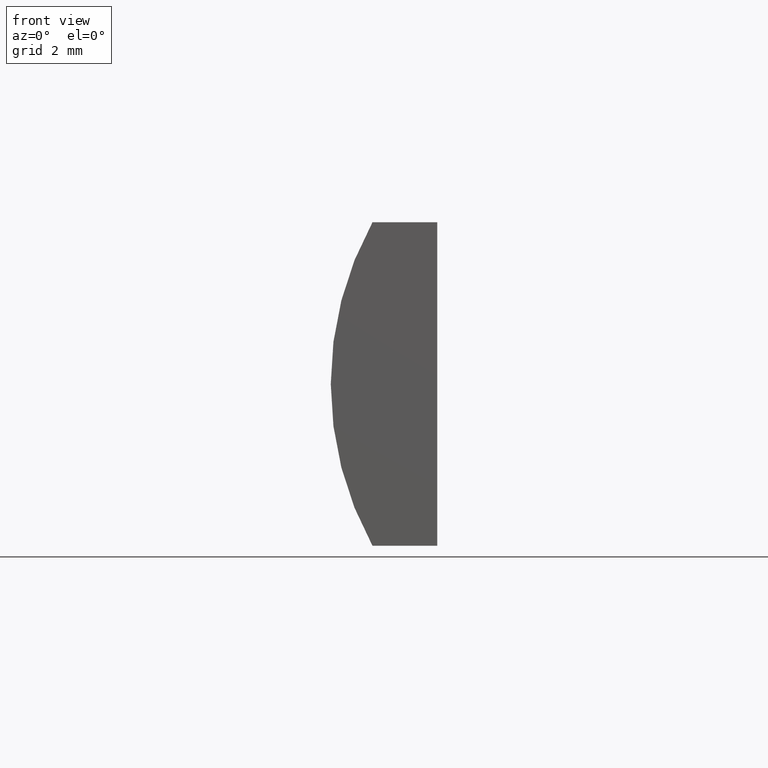
[diagram: clean part render]
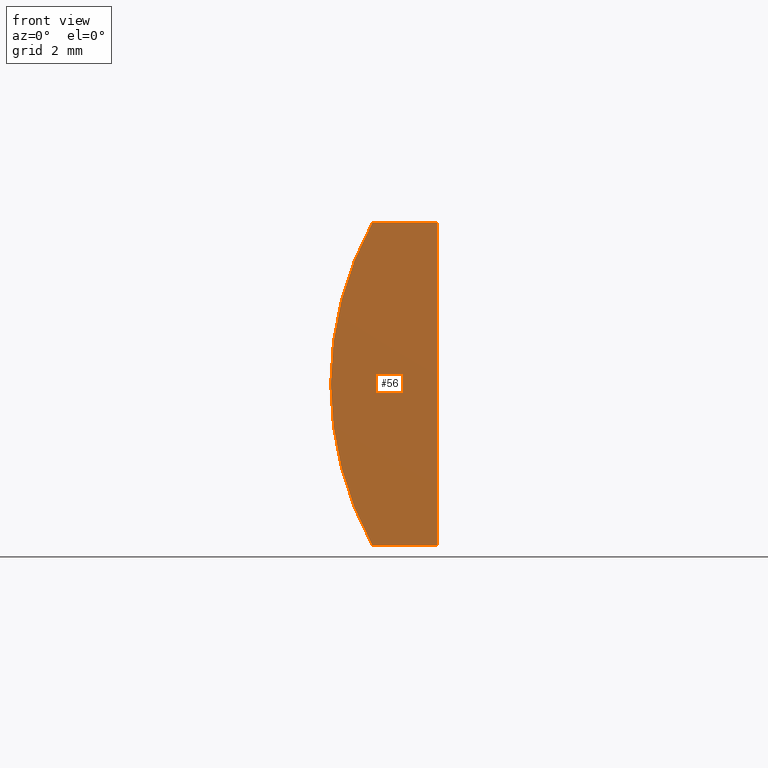
[diagram: same view with one face highlighted and labeled with its STEP entity id]
A machine part, front view. The second image highlights one B-rep face of the part: STEP entity #56.
In plain terms, the highlighted planar face has unit normal (0, 1, 0).
Its self-contained STEP definition (entity closure, byte-faithful):
#5 = LINE ( 'NONE', #129, #48 ) ;
#8 = VERTEX_POINT ( 'NONE', #71 ) ;
#11 = ORIENTED_EDGE ( 'NONE', *, *, #159, .F. ) ;
#13 = CARTESIAN_POINT ( 'NONE',  ( 4.355204334851265500, 0.0000000000000000000, 4.286263797015675000E-017 ) ) ;
#16 = CARTESIAN_POINT ( 'NONE',  ( 4.355204334851265500, 0.0000000000000000000, 4.286263797015675000E-017 ) ) ;
#20 = CARTESIAN_POINT ( 'NONE',  ( -4.695519393116569500, 0.0000000000000000000, -5.000000000000000000 ) ) ;
#38 = AXIS2_PLACEMENT_3D ( 'NONE', #13, #83, #178 ) ;
#48 = VECTOR ( 'NONE', #162, 1000.000000000000000 ) ;
#53 = CARTESIAN_POINT ( 'NONE',  ( -2.694795665148737900, 0.0000000000000000000, -5.000000000000000000 ) ) ;
#55 = CIRCLE ( 'NONE', #38, 10.34000000000000000 ) ;
#56 = ADVANCED_FACE ( 'NONE', ( #151 ), #81, .F. ) ;
#66 = DIRECTION ( 'NONE',  ( 1.000000000000000000, 0.0000000000000000000, 0.0000000000000000000 ) ) ;
#68 = ORIENTED_EDGE ( 'NONE', *, *, #115, .F. ) ;
#70 = DIRECTION ( 'NONE',  ( 0.0000000000000000000, 1.000000000000000000, 0.0000000000000000000 ) ) ;
#71 = CARTESIAN_POINT ( 'NONE',  ( -4.695519393116569500, 0.0000000000000000000, 5.000000000000000000 ) ) ;
#81 = PLANE ( 'NONE',  #182 ) ;
#83 = DIRECTION ( 'NONE',  ( 0.0000000000000000000, 1.000000000000000000, 0.0000000000000000000 ) ) ;
#97 = EDGE_CURVE ( 'NONE', #8, #121, #117, .T. ) ;
#100 = VECTOR ( 'NONE', #66, 1000.000000000000000 ) ;
#106 = VERTEX_POINT ( 'NONE', #20 ) ;
#108 = CARTESIAN_POINT ( 'NONE',  ( -2.694795665148734400, 0.0000000000000000000, 5.000000000000000000 ) ) ;
#115 = EDGE_CURVE ( 'NONE', #106, #8, #55, .T. ) ;
#117 = LINE ( 'NONE', #119, #100 ) ;
#119 = CARTESIAN_POINT ( 'NONE',  ( -4.695519393116569500, 0.0000000000000000000, 5.000000000000000000 ) ) ;
#121 = VERTEX_POINT ( 'NONE', #108 ) ;
#129 = CARTESIAN_POINT ( 'NONE',  ( -4.695519393116569500, 0.0000000000000000000, -5.000000000000000000 ) ) ;
#131 = LINE ( 'NONE', #53, #137 ) ;
#137 = VECTOR ( 'NONE', #152, 1000.000000000000000 ) ;
#149 = VERTEX_POINT ( 'NONE', #167 ) ;
#151 = FACE_OUTER_BOUND ( 'NONE', #155, .T. ) ;
#152 = DIRECTION ( 'NONE',  ( -3.469446951953614200E-016, -0.0000000000000000000, -1.000000000000000000 ) ) ;
#155 = EDGE_LOOP ( 'NONE', ( #68, #11, #203, #188 ) ) ;
#159 = EDGE_CURVE ( 'NONE', #149, #106, #5, .T. ) ;
#162 = DIRECTION ( 'NONE',  ( -1.000000000000000000, -0.0000000000000000000, -0.0000000000000000000 ) ) ;
#167 = CARTESIAN_POINT ( 'NONE',  ( -2.694795665148737900, 0.0000000000000000000, -5.000000000000000000 ) ) ;
#178 = DIRECTION ( 'NONE',  ( 0.0000000000000000000, 0.0000000000000000000, 1.000000000000000000 ) ) ;
#182 = AXIS2_PLACEMENT_3D ( 'NONE', #16, #70, #187 ) ;
#187 = DIRECTION ( 'NONE',  ( 0.0000000000000000000, -0.0000000000000000000, 1.000000000000000000 ) ) ;
#188 = ORIENTED_EDGE ( 'NONE', *, *, #97, .F. ) ;
#195 = EDGE_CURVE ( 'NONE', #121, #149, #131, .T. ) ;
#203 = ORIENTED_EDGE ( 'NONE', *, *, #195, .F. ) ;